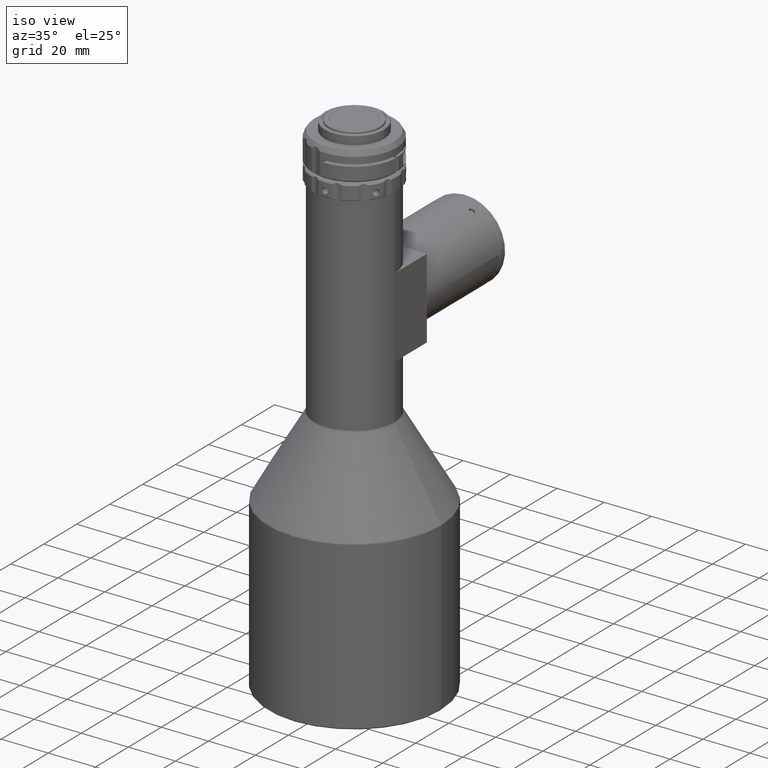
[diagram: clean part render]
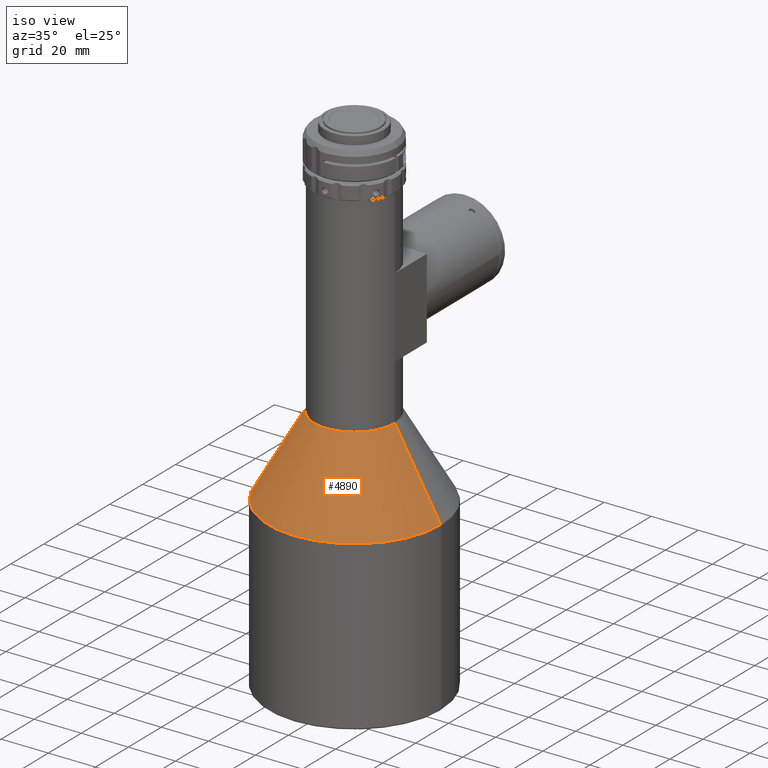
[diagram: same view with one face highlighted and labeled with its STEP entity id]
A machine part, iso view. The second image highlights one B-rep face of the part: STEP entity #4890.
In plain terms, the highlighted conical surface has half-angle 30 deg.
Its self-contained STEP definition (entity closure, byte-faithful):
#59 = ORIENTED_EDGE ( 'NONE', *, *, #7759, .F. ) ;
#501 = CARTESIAN_POINT ( 'NONE',  ( -36.61602540378452600, 1.763264499261919000E-014, -41.31259333163711700 ) ) ;
#956 = DIRECTION ( 'NONE',  ( -1.000000000000000000, -1.665334536937721300E-016, 7.580171607801050000E-016 ) ) ;
#973 = CARTESIAN_POINT ( 'NONE',  ( 36.61602540378444100, 3.431240116550573600E-014, -41.31259333163717400 ) ) ;
#978 = VERTEX_POINT ( 'NONE', #4261 ) ;
#1368 = CARTESIAN_POINT ( 'NONE',  ( -36.61602540378452600, 1.763264499261919000E-014, -41.31259333163711700 ) ) ;
#1424 = CARTESIAN_POINT ( 'NONE',  ( -4.020716237387242800E-014, 2.373043816365031800E-014, -41.31259333163714600 ) ) ;
#1612 = AXIS2_PLACEMENT_3D ( 'NONE', #8916, #1724, #9798 ) ;
#1645 = EDGE_CURVE ( 'NONE', #4023, #6557, #3679, .T. ) ;
#1652 = CIRCLE ( 'NONE', #2900, 36.61602540378448400 ) ;
#1711 = ORIENTED_EDGE ( 'NONE', *, *, #9797, .T. ) ;
#1724 = DIRECTION ( 'NONE',  ( 7.861355739480292300E-016, -5.318304654131143500E-016, 1.000000000000000000 ) ) ;
#2093 = DIRECTION ( 'NONE',  ( -0.4999999999999961700, 3.773119667073743600E-016, -0.8660254037844408200 ) ) ;
#2900 = AXIS2_PLACEMENT_3D ( 'NONE', #1424, #6784, #6860 ) ;
#3484 = CARTESIAN_POINT ( 'NONE',  ( -4.020716237387242800E-014, 2.373043816365031800E-014, -41.31259333163714600 ) ) ;
#3679 = LINE ( 'NONE', #973, #7296 ) ;
#4023 = VERTEX_POINT ( 'NONE', #9731 ) ;
#4172 = ORIENTED_EDGE ( 'NONE', *, *, #10564, .T. ) ;
#4261 = CARTESIAN_POINT ( 'NONE',  ( -17.13397459621560200, 5.029329895818180500E-015, -7.568691497289129300 ) ) ;
#4464 = VECTOR ( 'NONE', #2093, 1000.000000000000200 ) ;
#4890 = ADVANCED_FACE ( 'NONE', ( #7107 ), #10582, .T. ) ;
#5354 = DIRECTION ( 'NONE',  ( -7.861355739480292300E-016, 5.318304654131143500E-016, -1.000000000000000000 ) ) ;
#5364 = EDGE_LOOP ( 'NONE', ( #6039, #59, #1711, #4172 ) ) ;
#6039 = ORIENTED_EDGE ( 'NONE', *, *, #1645, .F. ) ;
#6129 = LINE ( 'NONE', #501, #4464 ) ;
#6557 = VERTEX_POINT ( 'NONE', #9855 ) ;
#6784 = DIRECTION ( 'NONE',  ( 7.861355739480292300E-016, -5.318304654131143500E-016, 1.000000000000000000 ) ) ;
#6860 = DIRECTION ( 'NONE',  ( 1.000000000000000000, 1.665334536937721300E-016, -7.580171607801050000E-016 ) ) ;
#7107 = FACE_OUTER_BOUND ( 'NONE', #5364, .T. ) ;
#7296 = VECTOR ( 'NONE', #9782, 1000.000000000000000 ) ;
#7759 = EDGE_CURVE ( 'NONE', #978, #4023, #8692, .T. ) ;
#8692 = CIRCLE ( 'NONE', #1612, 17.13397459621559100 ) ;
#8916 = CARTESIAN_POINT ( 'NONE',  ( -1.367988073808131100E-014, 5.784403146234572200E-015, -7.568691497289142600 ) ) ;
#9731 = CARTESIAN_POINT ( 'NONE',  ( 17.13397459621557300, 8.637783111243708600E-015, -7.568691497289156800 ) ) ;
#9782 = DIRECTION ( 'NONE',  ( 0.4999999999999948400, 6.050777603585121100E-016, -0.8660254037844417100 ) ) ;
#9797 = EDGE_CURVE ( 'NONE', #978, #11351, #6129, .T. ) ;
#9798 = DIRECTION ( 'NONE',  ( 1.000000000000000000, 1.665334536937721300E-016, -8.099573003265492100E-016 ) ) ;
#9855 = CARTESIAN_POINT ( 'NONE',  ( 36.61602540378444100, 3.431240116550573600E-014, -41.31259333163717400 ) ) ;
#10310 = AXIS2_PLACEMENT_3D ( 'NONE', #3484, #5354, #956 ) ;
#10564 = EDGE_CURVE ( 'NONE', #11351, #6557, #1652, .T. ) ;
#10582 = CONICAL_SURFACE ( 'NONE', #10310, 36.61602540378448400, 0.5235987755982930400 ) ;
#11351 = VERTEX_POINT ( 'NONE', #1368 ) ;